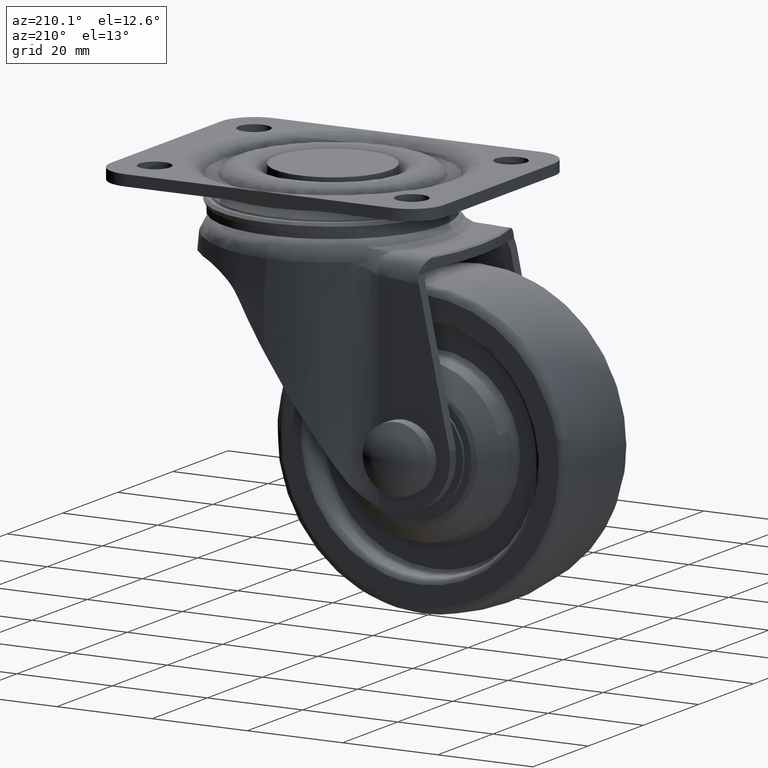
[diagram: clean part render]
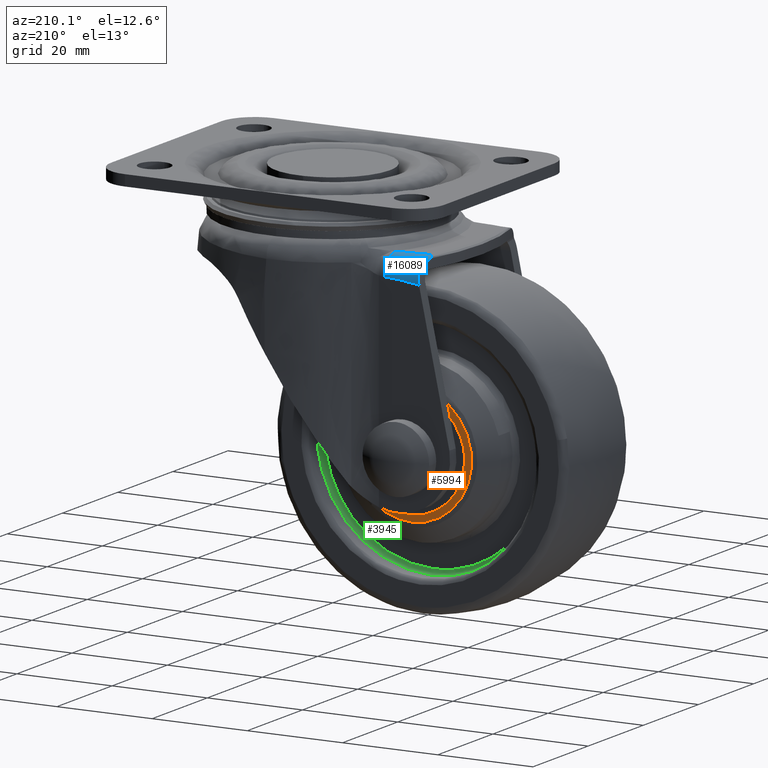
[diagram: same view with three faces highlighted in distinct colors, each labeled with its STEP entity id]
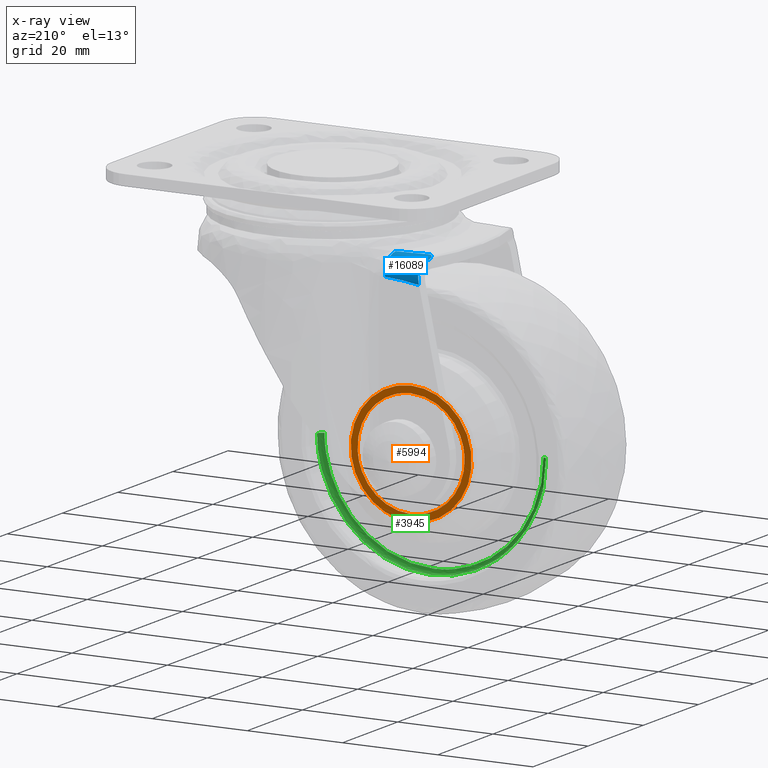
[diagram: x-ray of the same camera — body ghosted, the three highlighted faces saturated]
A machine part, auxiliary view with three faces highlighted in distinct colors.
The next image is the same camera in x-ray (body ghosted, the three faces saturated) — at least one of them is partly hidden behind the body in this view.
Their STEP definitions:

[orange] entity #5994 — the highlighted face is a freeform B-spline surface patch.
#5770=CARTESIAN_POINT('',(-17.025780699948260,14.750000000000000,-58.389538110037613));
#5771=VERTEX_POINT('',#5770);
#5772=CARTESIAN_POINT('',(-25.0,14.750000000000000,-35.795872999999901));
#5773=VERTEX_POINT('',#5772);
#5774=CARTESIAN_POINT('',(-17.025780699948260,14.750000000000000,-58.389538110037613));
#5775=CARTESIAN_POINT('',(-16.613466370398509,14.750000000000000,-58.057084478871623));
#5776=CARTESIAN_POINT('',(-15.649742893152300,14.749999999999989,-57.175202481467117));
#5777=CARTESIAN_POINT('',(-14.523782049839820,14.750000000000011,-55.770641914804443));
#5778=CARTESIAN_POINT('',(-13.580299962173740,14.750000000000011,-54.147645724718032));
#5779=CARTESIAN_POINT('',(-12.901560612423429,14.749999999999950,-52.527595573581557));
#5780=CARTESIAN_POINT('',(-12.450942752205879,14.750000000000000,-50.744814959654533));
#5781=CARTESIAN_POINT('',(-12.227679729350230,14.750000000000080,-48.592107933048631));
#5782=CARTESIAN_POINT('',(-12.380678056111551,14.749999999999790,-46.548266213132919));
#5783=CARTESIAN_POINT('',(-12.941647005812650,14.750000000000419,-44.332098218375883));
#5784=CARTESIAN_POINT('',(-13.751085627267241,14.749999999999799,-42.452410878207658));
#5785=CARTESIAN_POINT('',(-14.969405023097950,14.750000000000220,-40.611581306148878));
#5786=CARTESIAN_POINT('',(-16.248712247342890,14.749999999999369,-39.233394516637453));
#5787=CARTESIAN_POINT('',(-17.673127459902481,14.750000000000400,-38.074206545166057));
#5788=CARTESIAN_POINT('',(-19.207446362607389,14.749999999999689,-37.136845530577318));
#5789=CARTESIAN_POINT('',(-20.754197702333169,14.750000000000110,-36.493004927106277));
#5790=CARTESIAN_POINT('',(-22.677788867022400,14.749999999999931,-35.951871673565357));
#5791=CARTESIAN_POINT('',(-24.022174678614181,14.750000000000030,-35.795669787507812));
#5792=CARTESIAN_POINT('',(-25.0,14.750000000000000,-35.795872999999901));
#5793=B_SPLINE_CURVE_WITH_KNOTS('',3,(#5774,#5775,#5776,#5777,#5778,#5779,#5780,#5781,#5782,#5783,#5784,#5785,#5786,#5787,#5788,#5789,#5790,#5791,#5792),.UNSPECIFIED.,.F.,.U.,(4,1,1,1,1,1,1,1,1,1,1,1,1,1,1,1,4),(0.000000023887964,1.588960934061710,3.911292618975264,5.378049557620244,7.211479799997672,9.167085829864003,10.878319886831910,13.689455668890259,15.278447378261520,17.723009879322689,19.800878816647732,21.878765526342590,23.345507866795710,25.301166002914869,27.256818839152320,28.356878036180870,31.290293282959990),.UNSPECIFIED.);
#5794=EDGE_CURVE('',#5771,#5773,#5793,.T.);
#5796=CARTESIAN_POINT('',(-32.974219300051729,14.750000000000000,-38.610297889962403));
#5797=VERTEX_POINT('',#5796);
#5798=CARTESIAN_POINT('',(-25.0,14.750000000000000,-35.795872999999901));
#5799=CARTESIAN_POINT('',(-29.483771903972560,14.749999999999995,-35.795872999936336));
#5800=CARTESIAN_POINT('',(-32.974219300051729,14.750000000000004,-38.610297889962396));
#5808=(BOUNDED_CURVE()B_SPLINE_CURVE(2,(#5798,#5799,#5800),.UNSPECIFIED.,.F.,.U.)B_SPLINE_CURVE_WITH_KNOTS((3,3),(0.500000000000000,0.608867648263571),.UNSPECIFIED.)CURVE()GEOMETRIC_REPRESENTATION_ITEM()RATIONAL_B_SPLINE_CURVE((1.0,0.872453616301728,0.855992631305487))REPRESENTATION_ITEM(''));
#5809=EDGE_CURVE('',#5773,#5797,#5808,.T.);
#5872=CARTESIAN_POINT('',(-25.0,14.750000000000000,-61.203963000000101));
#5873=VERTEX_POINT('',#5872);
#5874=CARTESIAN_POINT('',(-25.0,14.750000000000000,-61.203963000000101));
#5875=CARTESIAN_POINT('',(-20.516228096027422,14.749999999999998,-61.203963000063681));
#5876=CARTESIAN_POINT('',(-17.025780699948264,14.749999999999995,-58.389538110037606));
#5884=(BOUNDED_CURVE()B_SPLINE_CURVE(2,(#5874,#5875,#5876),.UNSPECIFIED.,.F.,.U.)B_SPLINE_CURVE_WITH_KNOTS((3,3),(0.0,0.108867648263571),.UNSPECIFIED.)CURVE()GEOMETRIC_REPRESENTATION_ITEM()RATIONAL_B_SPLINE_CURVE((1.0,0.872453616301728,0.855992631305487))REPRESENTATION_ITEM(''));
#5885=EDGE_CURVE('',#5873,#5771,#5884,.T.);
#5892=CARTESIAN_POINT('',(-32.974219300051729,14.750000000000000,-38.610297889962403));
#5893=CARTESIAN_POINT('',(-33.576888206259390,14.750000000000020,-39.096136391685583));
#5894=CARTESIAN_POINT('',(-34.575445996895617,14.749999999999970,-40.064571819933008));
#5895=CARTESIAN_POINT('',(-35.839312650017341,14.750000000000020,-41.771801840348701));
#5896=CARTESIAN_POINT('',(-36.667842970239271,14.749999999999940,-43.369097268294752));
#5897=CARTESIAN_POINT('',(-37.251204546346699,14.750000000000069,-45.023657606754973));
#5898=CARTESIAN_POINT('',(-37.579062201522753,14.749999999999851,-46.498550712779242));
#5899=CARTESIAN_POINT('',(-37.739356564683327,14.750000000000281,-48.205050251215567));
#5900=CARTESIAN_POINT('',(-37.658981175184977,14.750000000000011,-50.164835417380139));
#5901=CARTESIAN_POINT('',(-37.241311577973747,14.749999999999520,-52.084593337916580));
#5902=CARTESIAN_POINT('',(-36.536251557232902,14.750000000000350,-53.912237784901393));
#5903=CARTESIAN_POINT('',(-35.807622316845922,14.749999999999829,-55.237016938886349));
#5904=CARTESIAN_POINT('',(-34.808079907252022,14.749999999999860,-56.627914110178672));
#5905=CARTESIAN_POINT('',(-33.501060657080252,14.750000000000520,-58.036177307484110));
#5906=CARTESIAN_POINT('',(-31.825626981276908,14.749999999999879,-59.283057188788149));
#5907=CARTESIAN_POINT('',(-29.902753130342209,14.750000000000000,-60.274906382264930));
#5908=CARTESIAN_POINT('',(-27.729649414975800,14.750000000000041,-61.000702723159158));
#5909=CARTESIAN_POINT('',(-25.977811547358041,14.750000000000000,-61.204148074639868));
#5910=CARTESIAN_POINT('',(-25.0,14.750000000000000,-61.203963000000101));
#5911=B_SPLINE_CURVE_WITH_KNOTS('',3,(#5892,#5893,#5894,#5895,#5896,#5897,#5898,#5899,#5900,#5901,#5902,#5903,#5904,#5905,#5906,#5907,#5908,#5909,#5910),.UNSPECIFIED.,.F.,.U.,(4,1,1,1,1,1,1,1,1,1,1,1,1,1,1,1,4),(0.000000023880389,2.322328484690122,4.155759319893701,6.355875751128821,7.700360760262591,9.411554625145531,10.878319886832010,12.833850735918830,15.278447378263969,16.745178004404249,18.700821855794260,19.800878816650570,21.878765526345671,24.445566422861312,26.034540806502410,28.356878036181580,31.290293282960029),.UNSPECIFIED.);
#5912=EDGE_CURVE('',#5797,#5873,#5911,.T.);
#5917=CARTESIAN_POINT('',(-38.972350554118577,14.750000000000000,-62.473097046254303));
#5918=CARTESIAN_POINT('',(-38.972350554118577,14.750000000000000,-34.526738272247620));
#5919=CARTESIAN_POINT('',(-11.027649672944129,14.750000000000000,-62.473097046254303));
#5920=CARTESIAN_POINT('',(-11.027649672944129,14.750000000000000,-34.526738272247620));
#5921=B_SPLINE_SURFACE_WITH_KNOTS('',1,1,((#5917,#5919),(#5918,#5920)),.UNSPECIFIED.,.F.,.F.,.U.,(2,2),(2,2),(0.0,27.946358774006679),(0.0,27.944700881174452),.UNSPECIFIED.);
#5922=ORIENTED_EDGE('',*,*,#5912,.F.);
#5923=ORIENTED_EDGE('',*,*,#5809,.F.);
#5924=ORIENTED_EDGE('',*,*,#5794,.F.);
#5925=ORIENTED_EDGE('',*,*,#5885,.F.);
#5926=EDGE_LOOP('',(#5922,#5923,#5924,#5925));
#5927=FACE_OUTER_BOUND('',#5926,.T.);
#5928=CARTESIAN_POINT('',(-25.0,14.750000000000000,-37.249918000000008));
#5929=VERTEX_POINT('',#5928);
#5930=CARTESIAN_POINT('',(-36.229016482242827,14.750000000000000,-47.813121930180969));
#5931=VERTEX_POINT('',#5930);
#5932=CARTESIAN_POINT('',(-25.0,14.750000000000000,-37.249918000000008));
#5933=CARTESIAN_POINT('',(-35.582943252640078,14.749999999999998,-37.249918000000008));
#5934=CARTESIAN_POINT('',(-36.229016482242834,14.749999999999995,-47.813121930180976));
#5942=(BOUNDED_CURVE()B_SPLINE_CURVE(2,(#5932,#5933,#5934),.UNSPECIFIED.,.F.,.U.)B_SPLINE_CURVE_WITH_KNOTS((3,3),(0.500000000000000,0.739332962241171),.UNSPECIFIED.)CURVE()GEOMETRIC_REPRESENTATION_ITEM()RATIONAL_B_SPLINE_CURVE((1.0,0.719603993284100,0.976072041671493))REPRESENTATION_ITEM(''));
#5943=EDGE_CURVE('',#5929,#5931,#5942,.T.);
#5944=ORIENTED_EDGE('',*,*,#5943,.T.);
#5945=CARTESIAN_POINT('',(-25.0,14.750000000000000,-59.749918000000001));
#5946=VERTEX_POINT('',#5945);
#5947=CARTESIAN_POINT('',(-36.229016482242827,14.749999999999998,-47.813121930180962));
#5948=CARTESIAN_POINT('',(-36.250000000000007,14.750000000000005,-48.156199412864858));
#5949=CARTESIAN_POINT('',(-36.250000000000007,14.750000000000000,-48.499918000000001));
#5950=CARTESIAN_POINT('',(-36.250000000000000,14.750000000000005,-59.749918000000008));
#5951=CARTESIAN_POINT('',(-25.0,14.750000000000000,-59.749918000000001));
#5959=(BOUNDED_CURVE()B_SPLINE_CURVE(2,(#5947,#5948,#5949,#5950,#5951),.UNSPECIFIED.,.F.,.U.)B_SPLINE_CURVE_WITH_KNOTS((3,2,3),(0.739332962241171,0.750000000000000,1.0),.UNSPECIFIED.)CURVE()GEOMETRIC_REPRESENTATION_ITEM()RATIONAL_B_SPLINE_CURVE((0.976072041671493,0.987502787902448,1.0,0.707106781186548,1.0))REPRESENTATION_ITEM(''));
#5960=EDGE_CURVE('',#5931,#5946,#5959,.T.);
#5961=ORIENTED_EDGE('',*,*,#5960,.T.);
#5962=CARTESIAN_POINT('',(-13.770983517757170,14.750000000000000,-49.186714069819018));
#5963=VERTEX_POINT('',#5962);
#5964=CARTESIAN_POINT('',(-25.0,14.750000000000000,-59.749918000000001));
#5965=CARTESIAN_POINT('',(-14.417056747359918,14.750000000000002,-59.749918000000015));
#5966=CARTESIAN_POINT('',(-13.770983517757173,14.750000000000002,-49.186714069819018));
#5974=(BOUNDED_CURVE()B_SPLINE_CURVE(2,(#5964,#5965,#5966),.UNSPECIFIED.,.F.,.U.)B_SPLINE_CURVE_WITH_KNOTS((3,3),(0.0,0.239332962241171),.UNSPECIFIED.)CURVE()GEOMETRIC_REPRESENTATION_ITEM()RATIONAL_B_SPLINE_CURVE((1.0,0.719603993284100,0.976072041671493))REPRESENTATION_ITEM(''));
#5975=EDGE_CURVE('',#5946,#5963,#5974,.T.);
#5976=ORIENTED_EDGE('',*,*,#5975,.T.);
#5977=CARTESIAN_POINT('',(-13.770983517757173,14.750000000000002,-49.186714069819018));
#5978=CARTESIAN_POINT('',(-13.750000000000000,14.750000000000004,-48.843636587135144));
#5979=CARTESIAN_POINT('',(-13.750000000000000,14.750000000000000,-48.499918000000001));
#5980=CARTESIAN_POINT('',(-13.750000000000005,14.750000000000005,-37.249918000000001));
#5981=CARTESIAN_POINT('',(-25.0,14.750000000000000,-37.249918000000008));
#5989=(BOUNDED_CURVE()B_SPLINE_CURVE(2,(#5977,#5978,#5979,#5980,#5981),.UNSPECIFIED.,.F.,.U.)B_SPLINE_CURVE_WITH_KNOTS((3,2,3),(0.239332962241171,0.250000000000000,0.500000000000000),.UNSPECIFIED.)CURVE()GEOMETRIC_REPRESENTATION_ITEM()RATIONAL_B_SPLINE_CURVE((0.976072041671493,0.987502787902448,1.0,0.707106781186548,1.0))REPRESENTATION_ITEM(''));
#5990=EDGE_CURVE('',#5963,#5929,#5989,.T.);
#5991=ORIENTED_EDGE('',*,*,#5990,.T.);
#5992=EDGE_LOOP('',(#5944,#5961,#5976,#5991));
#5993=FACE_BOUND('',#5992,.T.);
#5994=ADVANCED_FACE('',(#5927,#5993),#5921,.T.);

[blue] entity #16089 — the highlighted face is a freeform B-spline surface patch.
#15820=CARTESIAN_POINT('',(-28.000946482756099,17.389390048748201,-14.219972504708521));
#15821=VERTEX_POINT('',#15820);
#15822=CARTESIAN_POINT('',(-28.011910966482951,17.290391293300001,-14.005071469099541));
#15823=VERTEX_POINT('',#15822);
#15824=CARTESIAN_POINT('',(-28.000946482756099,17.389390048748201,-14.219972504708499));
#15825=CARTESIAN_POINT('',(-27.993284801529111,17.374289985879191,-14.183573275247440));
#15826=CARTESIAN_POINT('',(-27.990693181847071,17.358446816608101,-14.147366223100960));
#15827=CARTESIAN_POINT('',(-27.994552428531360,17.325278807126249,-14.075364654828830));
#15828=CARTESIAN_POINT('',(-28.001129018389669,17.307900671492749,-14.039499959410810));
#15829=CARTESIAN_POINT('',(-28.011910966482951,17.290391293300051,-14.005071469099541));
#15830=B_SPLINE_CURVE_WITH_KNOTS('',3,(#15824,#15825,#15826,#15827,#15828,#15829),.UNSPECIFIED.,.F.,.U.,(4,2,4),(0.0,0.500000000000000,1.0),.UNSPECIFIED.);
#15831=EDGE_CURVE('',#15821,#15823,#15830,.T.);
#15920=CARTESIAN_POINT('',(-21.175428649782653,13.784484673255459,-11.357309212873918));
#15921=CARTESIAN_POINT('',(-21.175726935354870,13.812520648081703,-11.357309212873915));
#15922=CARTESIAN_POINT('',(-21.218582105795257,17.840494480745647,-11.357309212873915));
#15923=CARTESIAN_POINT('',(-21.218582105795253,17.840494480745665,-15.385511038871066));
#15924=CARTESIAN_POINT('',(-21.218582105795253,17.840494480745665,-15.413548623591081));
#15925=CARTESIAN_POINT('',(-22.940294587941281,13.773217083101162,-11.357309212873929));
#15926=CARTESIAN_POINT('',(-22.940592321227268,13.801201148332892,-11.357309212873915));
#15927=CARTESIAN_POINT('',(-22.983368156516558,17.821718239852228,-11.357309212873917));
#15928=CARTESIAN_POINT('',(-22.983368156516534,17.821718239852267,-15.378053875656384));
#15929=CARTESIAN_POINT('',(-22.983368156516541,17.821718239852281,-15.406039547801116));
#15930=CARTESIAN_POINT('',(-25.564063004034107,13.362195176375701,-11.357309212873918));
#15931=CARTESIAN_POINT('',(-25.564388908505226,13.392827062053648,-11.357309212873915));
#15932=CARTESIAN_POINT('',(-25.611212130678084,17.793759592134599,-11.357309212873917));
#15933=CARTESIAN_POINT('',(-25.611212130678112,17.793759592134588,-15.758490846677578));
#15934=CARTESIAN_POINT('',(-25.611212130678101,17.793759592134585,-15.789124491312794));
#15935=CARTESIAN_POINT('',(-28.187831393631729,12.951170779355001,-11.357309212873918));
#15936=CARTESIAN_POINT('',(-28.188185469381537,12.984450494274165,-11.357309212873915));
#15937=CARTESIAN_POINT('',(-28.239056104839587,17.765800944416902,-11.357309212873917));
#15938=CARTESIAN_POINT('',(-28.239056104839612,17.765800944416952,-16.138930299339453));
#15939=CARTESIAN_POINT('',(-28.239056104839612,17.765800944416945,-16.172211925260676));
#15940=CARTESIAN_POINT('',(-29.049550780478270,12.816178807005107,-11.357309212873918));
#15941=CARTESIAN_POINT('',(-29.049914108468602,12.850328143543091,-11.357309212873915));
#15942=CARTESIAN_POINT('',(-29.102114028279892,17.756618537592665,-11.357309212873917));
#15943=CARTESIAN_POINT('',(-29.102114028279907,17.756618537592690,-16.263877315157728));
#15944=CARTESIAN_POINT('',(-29.102114028279903,17.756618537592693,-16.298028612633555));
#15952=(BOUNDED_SURFACE()B_SPLINE_SURFACE(2,3,((#15920,#15925,#15930,#15935,#15940),(#15921,#15926,#15931,#15936,#15941),(#15922,#15927,#15932,#15937,#15942),(#15923,#15928,#15933,#15938,#15943),(#15924,#15929,#15934,#15939,#15944)),.UNSPECIFIED.,.F.,.F.,.U.)B_SPLINE_SURFACE_WITH_KNOTS((3,1,1,3),(4,1,4),(0.0,0.080725909522346,8.153278936261811,8.234004913028407),(0.0,5.350616337071076,7.967302831794282),.UNSPECIFIED.)GEOMETRIC_REPRESENTATION_ITEM()RATIONAL_B_SPLINE_SURFACE(((1.005857891896981,1.005857891896981,1.005857891896981,1.005857891896981,1.005857891896981),(1.002928945948491,1.002928945948491,1.002928945948491,1.002928945948491,1.002928945948491),(0.707106781186548,0.707106781186548,0.707106781186548,0.707106781186548,0.707106781186548),(1.002928948388287,1.002928948388287,1.002928948388287,1.002928948388287,1.002928948388287),(1.005857896776574,1.005857896776574,1.005857896776574,1.005857896776574,1.005857896776574)))REPRESENTATION_ITEM('')SURFACE());
#15953=CARTESIAN_POINT('',(-21.253316496903601,13.839898541449600,-11.357309212873860));
#15954=VERTEX_POINT('',#15953);
#15955=CARTESIAN_POINT('',(-21.295871634447099,17.839672167577501,-15.357309212873851));
#15956=VERTEX_POINT('',#15955);
#15957=CARTESIAN_POINT('',(-21.253316496903551,13.839898541449561,-11.357309212873851));
#15958=CARTESIAN_POINT('',(-21.295871634447099,17.839672167577504,-11.357309212873849));
#15959=CARTESIAN_POINT('',(-21.295871634447089,17.839672167577501,-15.357309212873851));
#15967=(BOUNDED_CURVE()B_SPLINE_CURVE(2,(#15957,#15958,#15959),.UNSPECIFIED.,.F.,.U.)CURVE()GEOMETRIC_REPRESENTATION_ITEM()QUASI_UNIFORM_CURVE()RATIONAL_B_SPLINE_CURVE((1.0,0.707106781186548,1.0))REPRESENTATION_ITEM(''));
#15968=EDGE_CURVE('',#15954,#15956,#15967,.T.);
#15969=ORIENTED_EDGE('',*,*,#15968,.T.);
#15970=CARTESIAN_POINT('',(-24.849323788378989,17.801865616682480,-15.626255804040980));
#15971=VERTEX_POINT('',#15970);
#15972=CARTESIAN_POINT('',(-24.849323788378989,17.801865616682470,-15.626255804040980));
#15973=CARTESIAN_POINT('',(-23.664839737068370,17.814467800314151,-15.473290481384311));
#15974=CARTESIAN_POINT('',(-22.480355685757740,17.827069983945840,-15.357309212873901));
#15975=CARTESIAN_POINT('',(-21.295871634447099,17.839672167577501,-15.357309212873901));
#15976=B_SPLINE_CURVE_WITH_KNOTS('',3,(#15972,#15973,#15974,#15975),.UNSPECIFIED.,.F.,.U.,(4,4),(0.168018638492049,0.336037276984099),.UNSPECIFIED.);
#15977=EDGE_CURVE('',#15971,#15956,#15976,.T.);
#15978=ORIENTED_EDGE('',*,*,#15977,.F.);
#15979=CARTESIAN_POINT('',(-28.402775942310850,17.764059065787400,-16.128989895178201));
#15980=VERTEX_POINT('',#15979);
#15981=CARTESIAN_POINT('',(-28.402775942310850,17.764059065787400,-16.128989895178201));
#15982=CARTESIAN_POINT('',(-27.736707455509030,17.771145625857748,-16.033246100377941));
#15983=CARTESIAN_POINT('',(-26.996633691832891,17.779019556672200,-15.926830910377801));
#15984=CARTESIAN_POINT('',(-26.182549504842491,17.787680912985749,-15.809796449950531));
#15985=CARTESIAN_POINT('',(-25.960459226473670,17.790043817296439,-15.778334738627670));
#15986=CARTESIAN_POINT('',(-25.516325249464000,17.794769130338249,-15.715183644913550));
#15987=CARTESIAN_POINT('',(-25.145923403060809,17.798709978744402,-15.664589335015700));
#15988=CARTESIAN_POINT('',(-24.849323788378989,17.801865616682480,-15.626255804040980));
#15989=B_SPLINE_CURVE_WITH_KNOTS('',3,(#15981,#15982,#15983,#15984,#15985,#15986,#15987,#15988),.UNSPECIFIED.,.F.,.U.,(4,1,1,1,1,4),(-0.000002495053657,2.018855205101141,2.243180004961402,2.467497534838286,2.691815064715171,3.589063840196593),.UNSPECIFIED.);
#15990=EDGE_CURVE('',#15980,#15971,#15989,.T.);
#15991=ORIENTED_EDGE('',*,*,#15990,.F.);
#15992=CARTESIAN_POINT('',(-28.000946482756088,17.389390048748201,-14.219972504708510));
#15993=CARTESIAN_POINT('',(-28.064116377887839,17.513888753361371,-14.520080984794291));
#15994=CARTESIAN_POINT('',(-28.129552924569659,17.607658315845999,-14.830957906875360));
#15995=CARTESIAN_POINT('',(-28.214179542917581,17.686491099539410,-15.233003307682660));
#15996=CARTESIAN_POINT('',(-28.231236034370831,17.700299142522010,-15.314035541707380));
#15997=CARTESIAN_POINT('',(-28.265351599901919,17.723822275857572,-15.476112279328200));
#15998=CARTESIAN_POINT('',(-28.282445328829461,17.733571632830451,-15.557321421701060));
#15999=CARTESIAN_POINT('',(-28.333833143123531,17.756850863108781,-15.801455416392050));
#16000=CARTESIAN_POINT('',(-28.368233593768259,17.764426575184348,-15.964885590460341));
#16001=CARTESIAN_POINT('',(-28.402775942310800,17.764059065787400,-16.128989895178151));
#16002=B_SPLINE_CURVE_WITH_KNOTS('',3,(#15992,#15993,#15994,#15995,#15996,#15997,#15998,#15999,#16000,#16001),.UNSPECIFIED.,.F.,.U.,(4,2,2,2,4),(0.0,0.499999999999999,0.624999999999999,0.749999999999999,1.0),.UNSPECIFIED.);
#16003=EDGE_CURVE('',#15821,#15980,#16002,.T.);
#16004=ORIENTED_EDGE('',*,*,#16003,.F.);
#16005=ORIENTED_EDGE('',*,*,#15831,.T.);
#16006=CARTESIAN_POINT('',(-28.992429394982700,14.712612596034420,-11.709300715309981));
#16007=VERTEX_POINT('',#16006);
#16008=CARTESIAN_POINT('',(-28.992429394982700,14.712612596034420,-11.709300715309981));
#16009=CARTESIAN_POINT('',(-28.903983989431332,14.987684837896010,-11.815439793153489));
#16010=CARTESIAN_POINT('',(-28.815827220692601,15.249170816859770,-11.943234861120541));
#16011=CARTESIAN_POINT('',(-28.641185741341442,15.745785637007341,-12.241460956683920));
#16012=CARTESIAN_POINT('',(-28.554691717723141,15.980926155292099,-12.411868287750121));
#16013=CARTESIAN_POINT('',(-28.427398877340210,16.312486114910349,-12.702313858360530));
#16014=CARTESIAN_POINT('',(-28.385242944415669,16.419783791585530,-12.805392118886781));
#16015=CARTESIAN_POINT('',(-28.303537156549410,16.623073195593069,-13.020105726248641));
#16016=CARTESIAN_POINT('',(-28.263822366959189,16.719510963058919,-13.132069178753030));
#16017=CARTESIAN_POINT('',(-28.186926138031041,16.901785586530210,-13.365448009668240));
#16018=CARTESIAN_POINT('',(-28.149744037651040,16.987623933311269,-13.486861955789159));
#16019=CARTESIAN_POINT('',(-28.078246041533621,17.148214570794771,-13.739647707752480));
#16020=CARTESIAN_POINT('',(-28.044108110488590,17.222560069524100,-13.870428954808551));
#16021=CARTESIAN_POINT('',(-28.011910966482951,17.290391293300051,-14.005071469099541));
#16022=B_SPLINE_CURVE_WITH_KNOTS('',3,(#16008,#16009,#16010,#16011,#16012,#16013,#16014,#16015,#16016,#16017,#16018,#16019,#16020,#16021),.UNSPECIFIED.,.F.,.U.,(4,2,2,2,2,2,4),(0.0,0.250000000000000,0.500000000000000,0.625000000000000,0.750000000000000,0.875000000000000,1.0),.UNSPECIFIED.);
#16023=EDGE_CURVE('',#16007,#15823,#16022,.T.);
#16024=ORIENTED_EDGE('',*,*,#16023,.F.);
#16025=CARTESIAN_POINT('',(-28.798572416451599,13.830968646634121,-11.442946867243959));
#16026=VERTEX_POINT('',#16025);
#16027=CARTESIAN_POINT('',(-28.798572416451599,13.830968646634121,-11.442946867243959));
#16028=CARTESIAN_POINT('',(-28.812429562877419,13.845704679393879,-11.446126108771510));
#16029=CARTESIAN_POINT('',(-28.823804879345420,13.861760061384720,-11.449580675486949));
#16030=CARTESIAN_POINT('',(-28.844117496822911,13.895137349935100,-11.456892068740551));
#16031=CARTESIAN_POINT('',(-28.852990103254669,13.912494321328481,-11.460753068976880));
#16032=CARTESIAN_POINT('',(-28.877233414867149,13.965766138643151,-11.472873467495891));
#16033=CARTESIAN_POINT('',(-28.890289744032280,14.002965084527769,-11.481700171197360));
#16034=CARTESIAN_POINT('',(-28.923959780172311,14.114241679833560,-11.509451730342890));
#16035=CARTESIAN_POINT('',(-28.939637182852369,14.189173182029201,-11.529895537112999));
#16036=CARTESIAN_POINT('',(-28.964786537575382,14.339114546035111,-11.574637698515049));
#16037=CARTESIAN_POINT('',(-28.973951633095059,14.414183485767859,-11.598937926657770));
#16038=CARTESIAN_POINT('',(-28.987103283268969,14.564185893647711,-11.651441787371100));
#16039=CARTESIAN_POINT('',(-28.991003101037101,14.638671689651440,-11.679485762883610));
#16040=CARTESIAN_POINT('',(-28.992429394982700,14.712612596034420,-11.709300715310000));
#16041=B_SPLINE_CURVE_WITH_KNOTS('',3,(#16027,#16028,#16029,#16030,#16031,#16032,#16033,#16034,#16035,#16036,#16037,#16038,#16039,#16040),.UNSPECIFIED.,.F.,.U.,(4,2,2,2,2,2,4),(0.0,0.062500000000002,0.125000000000003,0.250000000000003,0.500000000000002,0.750000000000001,1.0),.UNSPECIFIED.);
#16042=EDGE_CURVE('',#16026,#16007,#16041,.T.);
#16043=ORIENTED_EDGE('',*,*,#16042,.F.);
#16044=CARTESIAN_POINT('',(-28.055208613996850,13.038541991740180,-11.357309212873860));
#16045=VERTEX_POINT('',#16044);
#16046=CARTESIAN_POINT('',(-28.055208613996850,13.038541991740200,-11.357309212873920));
#16047=CARTESIAN_POINT('',(-28.054451610289242,13.041339996971059,-11.357309212873920));
#16048=CARTESIAN_POINT('',(-28.054639612237661,13.044292088326070,-11.357311721556940));
#16049=CARTESIAN_POINT('',(-28.056428377566530,13.049763179079720,-11.357322063028350));
#16050=CARTESIAN_POINT('',(-28.057855035409052,13.052264239455621,-11.357329533245380));
#16051=CARTESIAN_POINT('',(-28.062504795436119,13.059419214228139,-11.357357337296509));
#16052=CARTESIAN_POINT('',(-28.066180475973891,13.063832553286570,-11.357383421817330));
#16053=CARTESIAN_POINT('',(-28.077309132526739,13.076815453314330,-11.357482181093960));
#16054=CARTESIAN_POINT('',(-28.085102734019909,13.085131240599670,-11.357575900500960));
#16055=CARTESIAN_POINT('',(-28.108538581006250,13.110027765158350,-11.357940278906080));
#16056=CARTESIAN_POINT('',(-28.124382992450929,13.126421941920769,-11.358294220183341));
#16057=CARTESIAN_POINT('',(-28.171886521226469,13.175601957843440,-11.359688076436260));
#16058=CARTESIAN_POINT('',(-28.203627584593828,13.208299592183049,-11.361060142751560));
#16059=CARTESIAN_POINT('',(-28.298692462616721,13.306487461317140,-11.366502269375911));
#16060=CARTESIAN_POINT('',(-28.361901502896039,13.371998048620741,-11.371898473045590));
#16061=CARTESIAN_POINT('',(-28.550544441975021,13.568554406034410,-11.393338571079470));
#16062=CARTESIAN_POINT('',(-28.675139951452898,13.699707703749040,-11.414627826358110));
#16063=CARTESIAN_POINT('',(-28.798572416451599,13.830968646634121,-11.442946867243959));
#16064=B_SPLINE_CURVE_WITH_KNOTS('',3,(#16046,#16047,#16048,#16049,#16050,#16051,#16052,#16053,#16054,#16055,#16056,#16057,#16058,#16059,#16060,#16061,#16062,#16063),.UNSPECIFIED.,.F.,.U.,(4,2,2,2,2,2,2,2,4),(0.0,0.007812500000004,0.015625000000008,0.031250000000010,0.062500000000015,0.125000000000017,0.250000000000016,0.500000000000014,1.0),.UNSPECIFIED.);
#16065=EDGE_CURVE('',#16045,#16026,#16064,.T.);
#16066=ORIENTED_EDGE('',*,*,#16065,.F.);
#16067=CARTESIAN_POINT('',(-24.655480921921249,13.553734996401470,-11.357309212873920));
#16068=VERTEX_POINT('',#16067);
#16069=CARTESIAN_POINT('',(-24.655480921921249,13.553734996401470,-11.357309212873920));
#16070=CARTESIAN_POINT('',(-24.939359905543700,13.514735925322089,-11.357309212873931));
#16071=CARTESIAN_POINT('',(-25.293848788899378,13.463370228239381,-11.357309212873931));
#16072=CARTESIAN_POINT('',(-25.718801959521290,13.398878048999990,-11.357309212873920));
#16073=CARTESIAN_POINT('',(-25.949013910068921,13.364110414669240,-11.357309212873920));
#16074=CARTESIAN_POINT('',(-26.727755097688490,13.243600191286109,-11.357309212873890));
#16075=CARTESIAN_POINT('',(-27.435733146031652,13.134254381768001,-11.357309212873879));
#16076=CARTESIAN_POINT('',(-28.055208613996850,13.038541991740180,-11.357309212873860));
#16077=B_SPLINE_CURVE_WITH_KNOTS('',3,(#16069,#16070,#16071,#16072,#16073,#16074,#16075,#16076),.UNSPECIFIED.,.F.,.U.,(4,1,1,1,1,4),(0.000001200959381,0.859636281815062,1.074549477449255,1.289462673083448,1.558102345021253,3.438580048585933),.UNSPECIFIED.);
#16078=EDGE_CURVE('',#16068,#16045,#16077,.T.);
#16079=ORIENTED_EDGE('',*,*,#16078,.F.);
#16080=CARTESIAN_POINT('',(-21.253316496903601,13.839898541449561,-11.357309212873920));
#16081=CARTESIAN_POINT('',(-22.388257702005919,13.827823463307290,-11.357309212873920));
#16082=CARTESIAN_POINT('',(-23.522066068206659,13.709272424266510,-11.357309212873920));
#16083=CARTESIAN_POINT('',(-24.655480921921249,13.553734996401460,-11.357309212873920));
#16084=B_SPLINE_CURVE_WITH_KNOTS('',3,(#16080,#16081,#16082,#16083),.UNSPECIFIED.,.F.,.U.,(4,4),(0.0,0.160991003499639),.UNSPECIFIED.);
#16085=EDGE_CURVE('',#15954,#16068,#16084,.T.);
#16086=ORIENTED_EDGE('',*,*,#16085,.F.);
#16087=EDGE_LOOP('',(#15969,#15978,#15991,#16004,#16005,#16024,#16043,#16066,#16079,#16086));
#16088=FACE_OUTER_BOUND('',#16087,.T.);
#16089=ADVANCED_FACE('',(#16088),#15952,.T.);

[green] entity #3945 — the highlighted face is a freeform B-spline surface patch.
#3578=CARTESIAN_POINT('',(-48.998005068786568,7.499999998717142,-48.198334299356858));
#3579=VERTEX_POINT('',#3578);
#3593=CARTESIAN_POINT('',(-42.974863223321421,7.499999999309138,-64.402731968379470));
#3594=VERTEX_POINT('',#3593);
#3595=CARTESIAN_POINT('',(-48.998005068786576,7.499999998717142,-48.198334299356866));
#3596=CARTESIAN_POINT('',(-48.999899999999997,7.499999998721122,-48.349120196498106));
#3597=CARTESIAN_POINT('',(-48.999899999999990,7.499999998725152,-48.499918000000001));
#3598=CARTESIAN_POINT('',(-48.999899999999990,7.499999998968168,-57.592666014541621));
#3599=CARTESIAN_POINT('',(-42.974863223321449,7.499999999309191,-64.402731968379499));
#3607=(BOUNDED_CURVE()B_SPLINE_CURVE(2,(#3595,#3596,#3597,#3598,#3599),.UNSPECIFIED.,.F.,.U.)B_SPLINE_CURVE_WITH_KNOTS((3,2,3),(0.747784295921386,0.750000000000000,0.865779880272427),.UNSPECIFIED.)CURVE()GEOMETRIC_REPRESENTATION_ITEM()RATIONAL_B_SPLINE_CURVE((0.994854295643225,0.997404141201907,1.0,0.864355432772691,0.854350159570846))REPRESENTATION_ITEM(''));
#3608=EDGE_CURVE('',#3579,#3594,#3607,.T.);
#3644=CARTESIAN_POINT('',(-1.001994931213424,7.499999998717142,-48.801501700643144));
#3645=VERTEX_POINT('',#3644);
#3666=CARTESIAN_POINT('',(-25.0,7.500000000000000,-72.499818000000005));
#3667=VERTEX_POINT('',#3666);
#3668=CARTESIAN_POINT('',(-42.974863223321449,7.499999999309191,-64.402731968379499));
#3669=CARTESIAN_POINT('',(-35.811167386139374,7.499999999714666,-72.499818000000005));
#3670=CARTESIAN_POINT('',(-25.0,7.500000000000000,-72.499818000000005));
#3678=(BOUNDED_CURVE()B_SPLINE_CURVE(2,(#3668,#3669,#3670),.UNSPECIFIED.,.F.,.U.)B_SPLINE_CURVE_WITH_KNOTS((3,3),(0.865779880272427,1.0),.UNSPECIFIED.)CURVE()GEOMETRIC_REPRESENTATION_ITEM()RATIONAL_B_SPLINE_CURVE((0.854350159570846,0.842751348413856,1.0))REPRESENTATION_ITEM(''));
#3679=EDGE_CURVE('',#3594,#3667,#3678,.T.);
#3681=CARTESIAN_POINT('',(-25.0,7.500000000000000,-72.499818000000005));
#3682=CARTESIAN_POINT('',(-1.299812433463542,7.499999999358570,-72.499818000000005));
#3683=CARTESIAN_POINT('',(-1.001994931213424,7.499999998717142,-48.801501700643144));
#3691=(BOUNDED_CURVE()B_SPLINE_CURVE(2,(#3681,#3682,#3683),.UNSPECIFIED.,.F.,.U.)B_SPLINE_CURVE_WITH_KNOTS((3,3),(0.0,0.247784295921386),.UNSPECIFIED.)CURVE()GEOMETRIC_REPRESENTATION_ITEM()RATIONAL_B_SPLINE_CURVE((1.0,0.709702639984641,0.994854295643225))REPRESENTATION_ITEM(''));
#3692=EDGE_CURVE('',#3667,#3645,#3691,.T.);
#3851=CARTESIAN_POINT('',(-48.987154179370641,7.569537109113247,-47.527526451701199));
#3852=CARTESIAN_POINT('',(-48.991344853983122,7.569537109113248,-47.860992187392370));
#3853=CARTESIAN_POINT('',(-49.297137908209386,7.569537109113249,-72.193949342595971));
#3854=CARTESIAN_POINT('',(-25.301553282806715,7.569537109113247,-72.495502625402651));
#3855=CARTESIAN_POINT('',(-1.305968657404058,7.569537109113249,-72.797055908209387));
#3856=CARTESIAN_POINT('',(-1.000175603180324,7.569537109113247,-48.464098753207843));
#3857=CARTESIAN_POINT('',(-0.995984928570327,7.569537109113247,-48.130633017714032));
#3858=CARTESIAN_POINT('',(-49.067077554778905,6.422462825982247,-47.524286516935398));
#3859=CARTESIAN_POINT('',(-49.071282192400815,6.422462825982247,-47.858863335124326));
#3860=CARTESIAN_POINT('',(-49.378094125852485,6.422462825982246,-72.272896054980762));
#3861=CARTESIAN_POINT('',(-25.302558035435862,6.422462825982246,-72.575454090416628));
#3862=CARTESIAN_POINT('',(-1.227021945019224,6.422462825982246,-72.878012125852507));
#3863=CARTESIAN_POINT('',(-0.920210011570089,6.422462825982247,-48.463979406198746));
#3864=CARTESIAN_POINT('',(-0.916005373950659,6.422462825982247,-48.129402588207867));
#3865=CARTESIAN_POINT('',(-47.920496815547473,6.502420636468237,-47.570766620908273));
#3866=CARTESIAN_POINT('',(-47.924501139836714,6.502420636468237,-47.889403849645369));
#3867=CARTESIAN_POINT('',(-48.216696231976371,6.502420636468235,-71.140326523430005));
#3868=CARTESIAN_POINT('',(-25.288143854273187,6.502420636468237,-71.428470377703178));
#3869=CARTESIAN_POINT('',(-2.359591476570008,6.502420636468235,-71.716614231976408));
#3870=CARTESIAN_POINT('',(-2.067396384432763,6.502420636468237,-48.465691558384805));
#3871=CARTESIAN_POINT('',(-2.063392060145888,6.502420636468237,-48.147054329836322));
#3879=(BOUNDED_SURFACE()B_SPLINE_SURFACE(2,2,((#3851,#3858,#3865),(#3852,#3859,#3866),(#3853,#3860,#3867),(#3854,#3861,#3868),(#3855,#3862,#3869),(#3856,#3863,#3870),(#3857,#3864,#3871)),.UNSPECIFIED.,.F.,.F.,.U.)B_SPLINE_SURFACE_WITH_KNOTS((3,1,2,1,3),(3,3),(0.0,0.795206513704480,40.555532177526217,80.315857841347963,81.111064354573429),(0.0,1.822729993278122),.UNSPECIFIED.)GEOMETRIC_REPRESENTATION_ITEM()RATIONAL_B_SPLINE_SURFACE(((0.921146729410691,0.604479481456203,0.921146741243325),(0.915813262250844,0.600979527149020,0.915813274014966),(0.643806437242182,0.422481857576905,0.643806445512228),(0.910479795090997,0.597479572841838,0.910479806786608),(0.643806437242182,0.422481857576905,0.643806445512228),(0.915813262247631,0.600979527146912,0.915813274011754),(0.921146729404266,0.604479481451986,0.921146741236899)))REPRESENTATION_ITEM('')SURFACE());
#3880=CARTESIAN_POINT('',(-47.998084038402311,6.500000000000001,-48.210900338766038));
#3881=VERTEX_POINT('',#3880);
#3882=CARTESIAN_POINT('',(-25.0,6.500000000000000,-71.499818000000005));
#3883=VERTEX_POINT('',#3882);
#3884=CARTESIAN_POINT('',(-47.998084038402318,6.500000000000001,-48.210900338766038));
#3885=CARTESIAN_POINT('',(-47.999900013780440,6.500000000000001,-48.355403464166571));
#3886=CARTESIAN_POINT('',(-47.999900013737012,6.500000000000001,-48.499917999827368));
#3887=CARTESIAN_POINT('',(-47.999900006825335,6.500000000000000,-71.499817999914214));
#3888=CARTESIAN_POINT('',(-25.0,6.500000000000000,-71.499818000000005));
#3896=(BOUNDED_CURVE()B_SPLINE_CURVE(2,(#3884,#3885,#3886,#3887,#3888),.UNSPECIFIED.,.F.,.U.)B_SPLINE_CURVE_WITH_KNOTS((3,2,3),(0.747784295919074,0.750000000000000,1.0),.UNSPECIFIED.)CURVE()GEOMETRIC_REPRESENTATION_ITEM()RATIONAL_B_SPLINE_CURVE((0.994854295637903,0.997404141199198,1.0,0.707106781186547,1.0))REPRESENTATION_ITEM(''));
#3897=EDGE_CURVE('',#3881,#3883,#3896,.T.);
#3898=ORIENTED_EDGE('',*,*,#3897,.T.);
#3899=CARTESIAN_POINT('',(-2.001915961597692,6.500000000000000,-48.788935661233957));
#3900=VERTEX_POINT('',#3899);
#3901=CARTESIAN_POINT('',(-25.0,6.500000000000000,-71.499818000000005));
#3902=CARTESIAN_POINT('',(-2.287324356755945,6.500000000000000,-71.499818000086890));
#3903=CARTESIAN_POINT('',(-2.001915961597692,6.500000000000001,-48.788935661233964));
#3911=(BOUNDED_CURVE()B_SPLINE_CURVE(2,(#3901,#3902,#3903),.UNSPECIFIED.,.F.,.U.)B_SPLINE_CURVE_WITH_KNOTS((3,3),(0.0,0.247784295919074),.UNSPECIFIED.)CURVE()GEOMETRIC_REPRESENTATION_ITEM()RATIONAL_B_SPLINE_CURVE((1.0,0.709702639987350,0.994854295637903))REPRESENTATION_ITEM(''));
#3912=EDGE_CURVE('',#3883,#3900,#3911,.T.);
#3913=ORIENTED_EDGE('',*,*,#3912,.T.);
#3914=CARTESIAN_POINT('',(-1.001994931213424,7.499999998717142,-48.801501700643158));
#3915=CARTESIAN_POINT('',(-1.001994932498072,6.500000013824423,-48.801501700777251));
#3916=CARTESIAN_POINT('',(-2.001915961597692,6.500000000000000,-48.788935661233964));
#3924=(BOUNDED_CURVE()B_SPLINE_CURVE(2,(#3914,#3915,#3916),.UNSPECIFIED.,.F.,.U.)B_SPLINE_CURVE_WITH_KNOTS((3,3),(-1.725134641966249,-0.274865370895064),.UNSPECIFIED.)CURVE()GEOMETRIC_REPRESENTATION_ITEM()RATIONAL_B_SPLINE_CURVE((0.883342149183671,0.624617226891399,0.883342144594810))REPRESENTATION_ITEM(''));
#3925=EDGE_CURVE('',#3645,#3900,#3924,.T.);
#3926=ORIENTED_EDGE('',*,*,#3925,.F.);
#3927=ORIENTED_EDGE('',*,*,#3692,.F.);
#3928=ORIENTED_EDGE('',*,*,#3679,.F.);
#3929=ORIENTED_EDGE('',*,*,#3608,.F.);
#3930=CARTESIAN_POINT('',(-48.998005068786568,7.499999998717141,-48.198334299356858));
#3931=CARTESIAN_POINT('',(-48.998005067501914,6.500000013824426,-48.198334299222765));
#3932=CARTESIAN_POINT('',(-47.998084038402311,6.500000000000001,-48.210900338766038));
#3940=(BOUNDED_CURVE()B_SPLINE_CURVE(2,(#3930,#3931,#3932),.UNSPECIFIED.,.F.,.U.)B_SPLINE_CURVE_WITH_KNOTS((3,3),(-1.725134641966250,-0.274865370895068),.UNSPECIFIED.)CURVE()GEOMETRIC_REPRESENTATION_ITEM()RATIONAL_B_SPLINE_CURVE((0.883342149183672,0.624617226891400,0.883342144594809))REPRESENTATION_ITEM(''));
#3941=EDGE_CURVE('',#3579,#3881,#3940,.T.);
#3942=ORIENTED_EDGE('',*,*,#3941,.T.);
#3943=EDGE_LOOP('',(#3898,#3913,#3926,#3927,#3928,#3929,#3942));
#3944=FACE_OUTER_BOUND('',#3943,.T.);
#3945=ADVANCED_FACE('',(#3944),#3879,.F.);